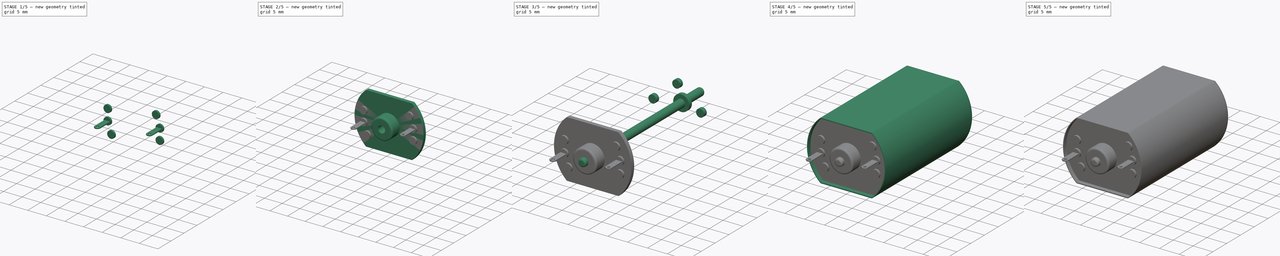
[diagram: build sequence overview — one tinted view per stage of 5, left to right]
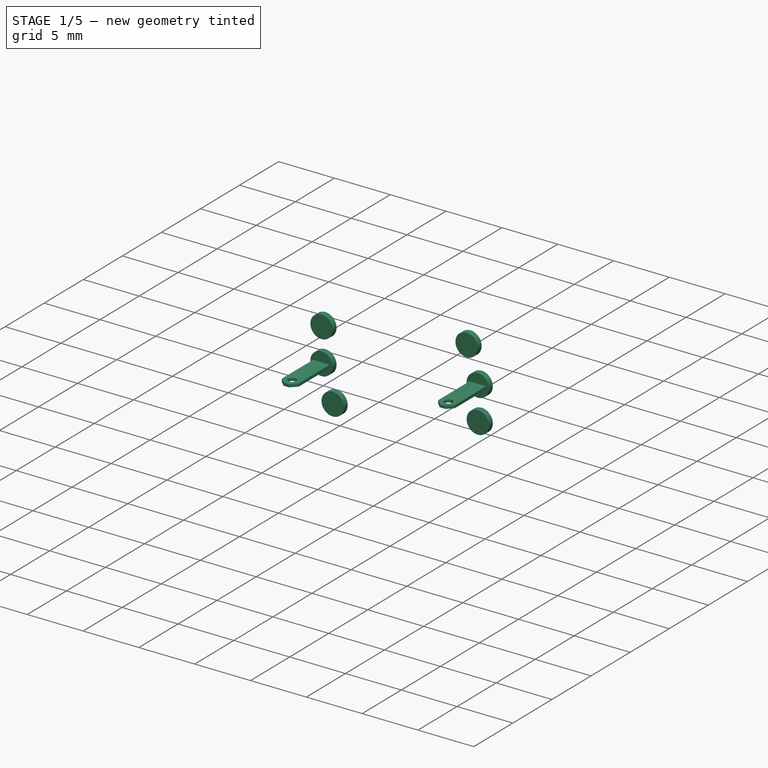
[diagram: stage 1 of 5 — iso view after this stage's code; geometry added in this stage tinted green]
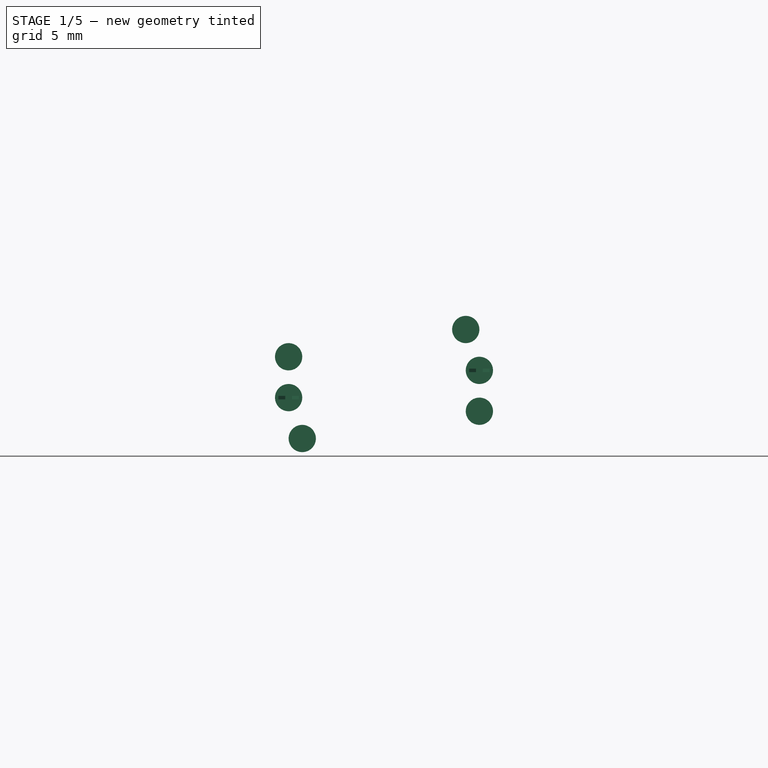
[diagram: stage 1 of 5 — front view after this stage's code; geometry added in this stage tinted green]
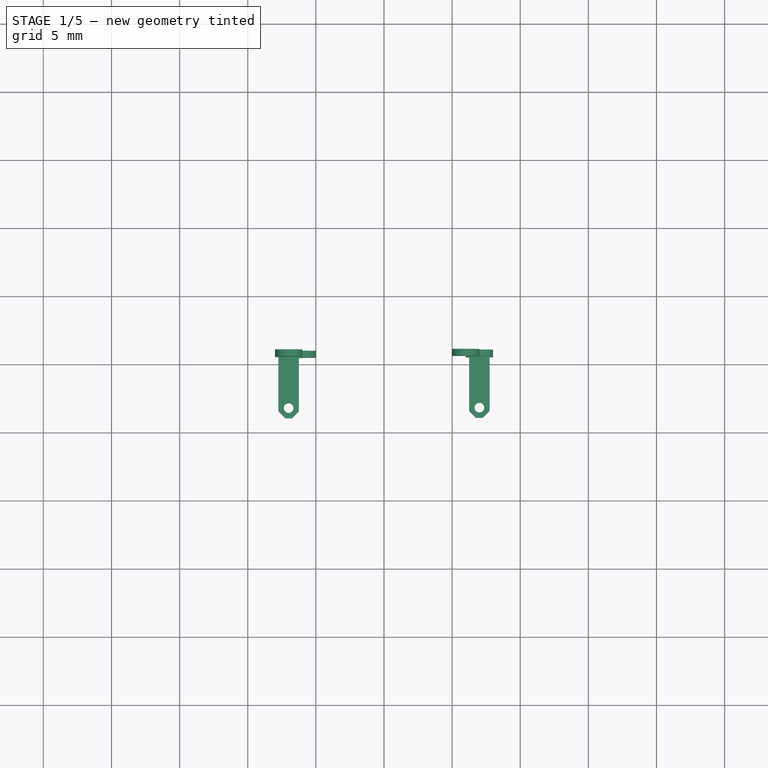
[diagram: stage 1 of 5 — top view after this stage's code; geometry added in this stage tinted green]
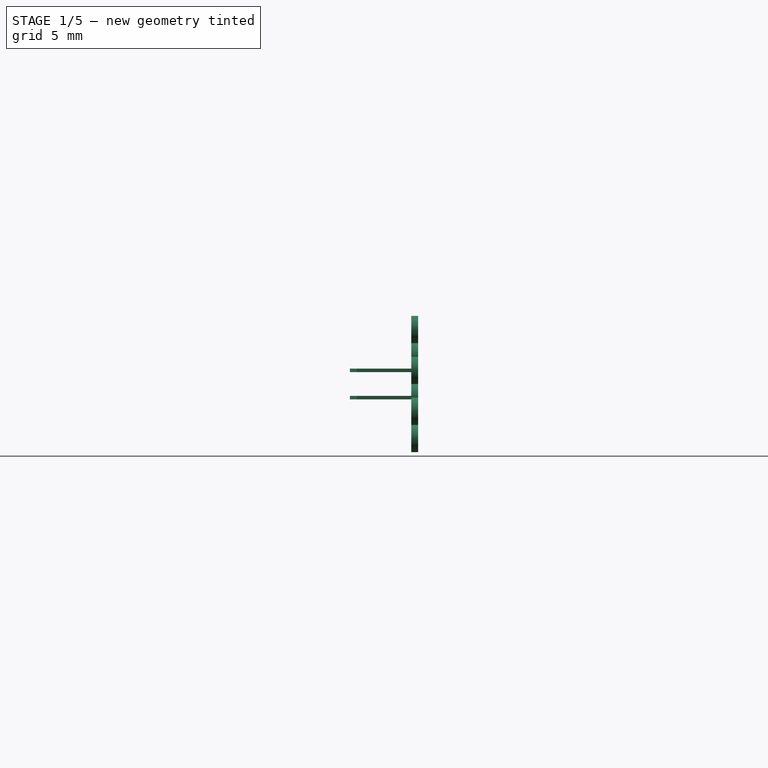
[diagram: stage 1 of 5 — right view after this stage's code; geometry added in this stage tinted green]
FCSTD DOCUMENT  (FreeCAD 0.14R3702 (Git))
Label: scaleauto-sc0026
License: CC-BY 3.0
LicenseURL: http://creativecommons.org/licenses/by/3.0/
objects: Part::Extrusion×16, Sketcher::SketchObject×15, Part::Cut×8, Part::Fillet×4, Part::Compound×3, Part::MultiFuse×2, Part::Chamfer×1
note: 49 computed .brp shape members not serialized (recipe doc carries the construction recipe); baked Part::Feature solids carry a one-line shape summary decoded from their .brp

FEATURE [Sketcher::SketchObject] Sketch014
  Placement = pos=(0,0,0) rot=(-1,0,0;4.71239rad)
  sketch-geometry (3):
    g0: Circle CenterX=7 CenterY=1 CenterZ=0 NormalX=0 NormalY=0 NormalZ=1 Radius=1
    g1: Circle CenterX=6 CenterY=4 CenterZ=0 NormalX=0 NormalY=0 NormalZ=1 Radius=1
    g2: Circle CenterX=7 CenterY=-2 CenterZ=0 NormalX=0 NormalY=0 NormalZ=1 Radius=1
FEATURE [Part::Extrusion] Extrude013
  Base = -> Sketch014
  Dir = (0,0.5,0)
  Placement = pos=(0,0.5,0) rot=(0,0,1;0rad)
  Solid = true
FEATURE [Sketcher::SketchObject] Sketch015
  Placement = pos=(0.25,0,1) rot=(0,0,1;0rad)
  sketch-geometry (6):
    g0: LineSegment StartX=7.5 StartY=0.5 StartZ=0 EndX=7.5 EndY=-3.5 EndZ=0
    g1: LineSegment StartX=7.5 StartY=-3.5 StartZ=0 EndX=7 EndY=-4 EndZ=0
    g2: LineSegment StartX=7 StartY=-4 StartZ=0 EndX=6.5 EndY=-4 EndZ=0
    g3: LineSegment StartX=6.5 StartY=-4 StartZ=0 EndX=6 EndY=-3.5 EndZ=0
    g4: LineSegment StartX=6 StartY=-3.5 StartZ=0 EndX=6 EndY=0.5 EndZ=0
    g5: LineSegment StartX=6 StartY=0.5 StartZ=0 EndX=7.5 EndY=0.5 EndZ=0
  constraints (9):
    c: Vertical(g0)
    c: Coincident(g1,g0)
    c: Horizontal(g2)
    c: Coincident(g3,g2)
    c: Coincident(g4,g3)
    c: Vertical(g4)
    c: Coincident(g5,g4)
    c: Coincident(g5,g0)
    c: Horizontal(g5)
FEATURE [Part::Extrusion] Extrude014
  Base = -> Sketch015
  Dir = (0,0,0.25)
  Placement = pos=(0,0,-0.125) rot=(0,0,1;0rad)
  Solid = true
FEATURE [Sketcher::SketchObject] Sketch016
  sketch-geometry (1):
    g0: Circle CenterX=7 CenterY=-3.25 CenterZ=0 NormalX=0 NormalY=0 NormalZ=1 Radius=0.353553
FEATURE [Part::Extrusion] Extrude015
  Base = -> Sketch016
  Dir = (0,0,2)
  Solid = true
FEATURE [Part::Cut] Cut006
  Base = -> Extrude014
  Tool = -> Extrude015
FEATURE [Part::Cut] Cut007
  Base = -> Extrude014
  Tool = -> Extrude015
FEATURE [Part::Extrusion] Extrude016
  Base = -> Sketch014
  Dir = (0,0.5,0)
  Placement = pos=(0,0.5,0) rot=(0,0,1;0rad)
  Solid = true
FEATURE [Part::Compound] Compound001
  Links = -> [Extrude016,Cut007]
  Placement = pos=(0,0,0) rot=(0,1,0;3.14159rad)
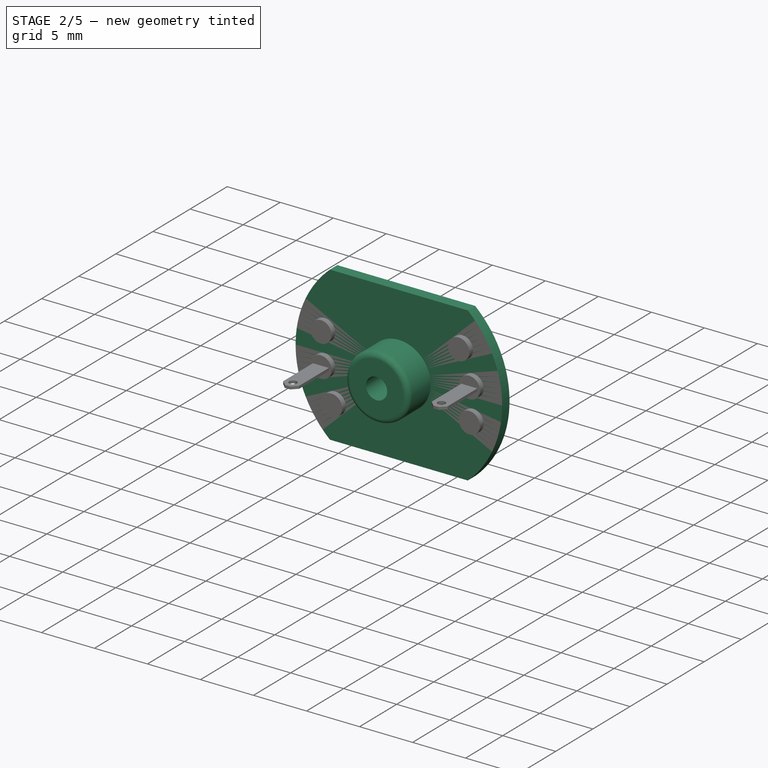
[diagram: stage 2 of 5 — iso view after this stage's code; geometry added in this stage tinted green]
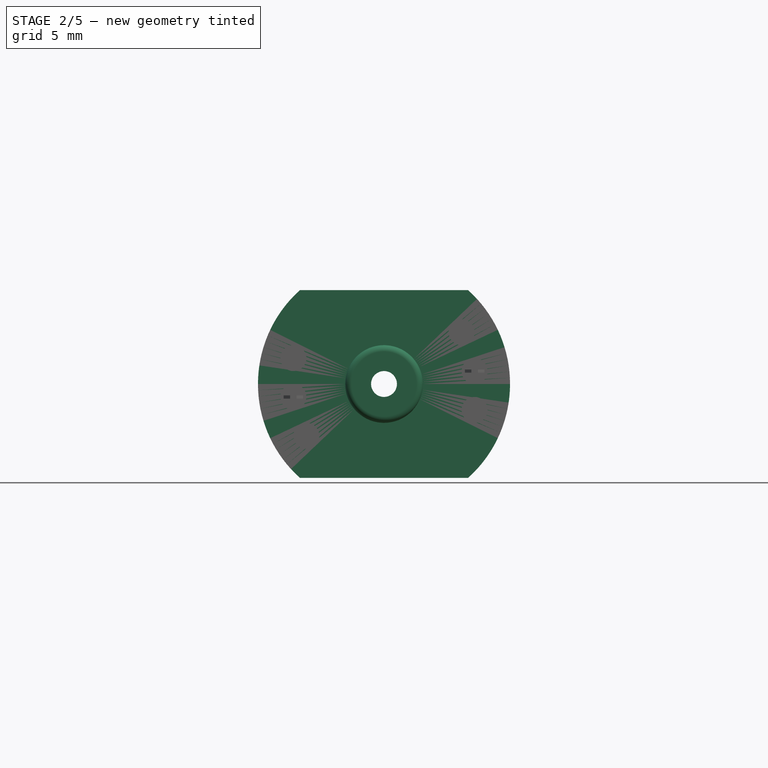
[diagram: stage 2 of 5 — front view after this stage's code; geometry added in this stage tinted green]
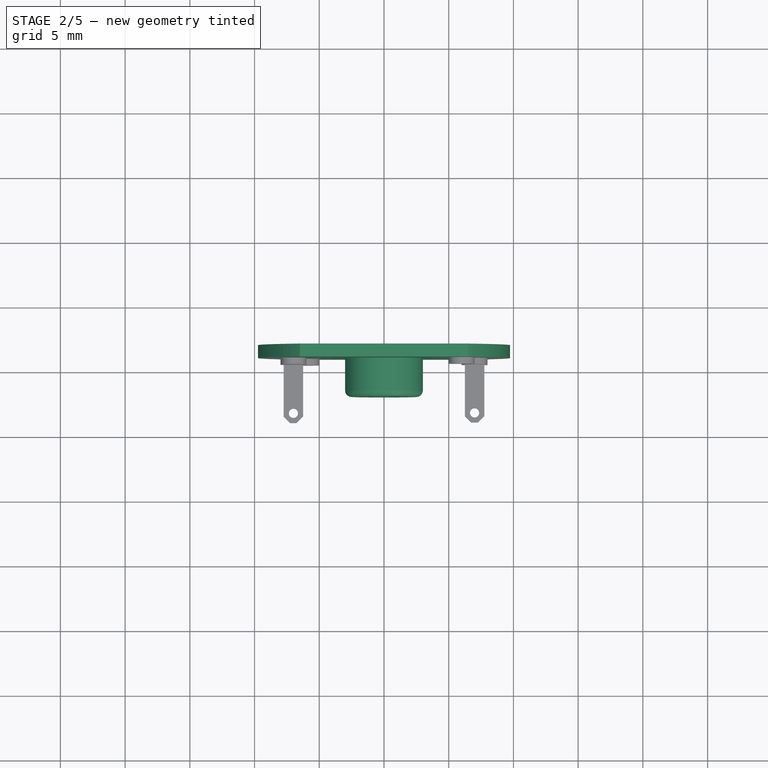
[diagram: stage 2 of 5 — top view after this stage's code; geometry added in this stage tinted green]
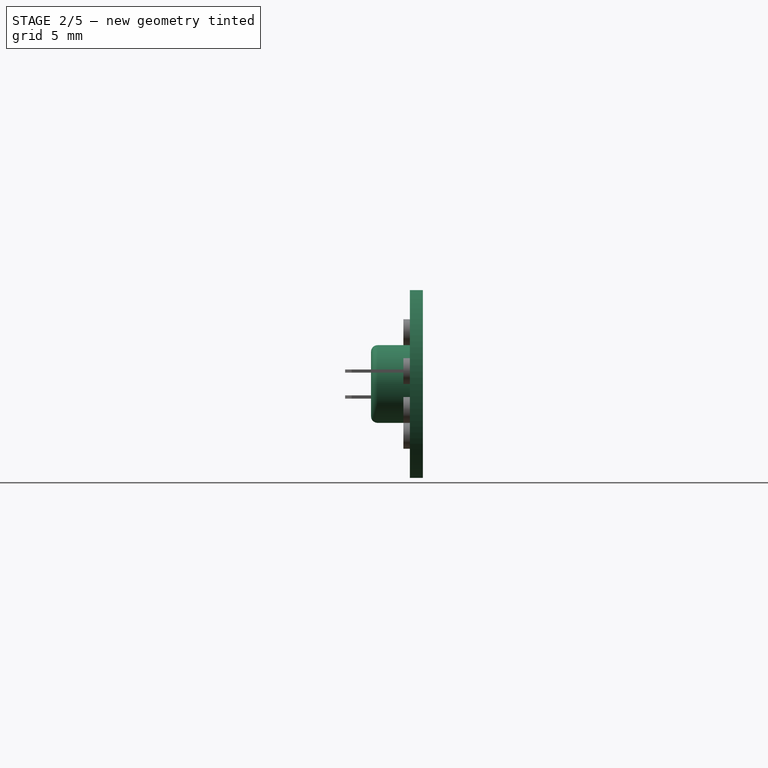
[diagram: stage 2 of 5 — right view after this stage's code; geometry added in this stage tinted green]
FEATURE [Part::Extrusion] Extrude002
  Base = -> Sketch001
  Dir = (0,1,0)
  Placement = pos=(0,1,0) rot=(0,0,1;0rad)
  Solid = true
FEATURE [Sketcher::SketchObject] Sketch012
  Placement = pos=(0,-2.5,0) rot=(-1,0,0;4.71239rad)
  sketch-geometry (1):
    g0: Circle CenterX=0 CenterY=0 CenterZ=0 NormalX=0 NormalY=0 NormalZ=1 Radius=3
FEATURE [Sketcher::SketchObject] Sketch013
  Placement = pos=(0,-3,0) rot=(-1,0,0;4.71239rad)
  sketch-geometry (1):
    g0: Circle CenterX=0 CenterY=0 CenterZ=0 NormalX=0 NormalY=0 NormalZ=1 Radius=1
  constraints (1):
    c: Coincident(g0,g-1)
FEATURE [Part::Extrusion] Extrude011
  Base = -> Sketch013
  Dir = (0,5,0)
  Solid = true
FEATURE [Part::Extrusion] Extrude012
  Base = -> Sketch012
  Dir = (0,3,0)
  Placement = pos=(0,0.5,0) rot=(0,0,1;0rad)
  Solid = true
FEATURE [Part::Fillet] Fillet003
  Base = -> Extrude012
  Edges = 1 edges r=0.5: [Edge2]
FEATURE [Part::MultiFuse] Fusion001
  Shapes = -> [Extrude002,Fillet003]
FEATURE [Part::Cut] Cut005
  Base = -> Fusion001
  Tool = -> Extrude011
FEATURE [Part::Compound] Compound
  Links = -> [Extrude013,Cut006]
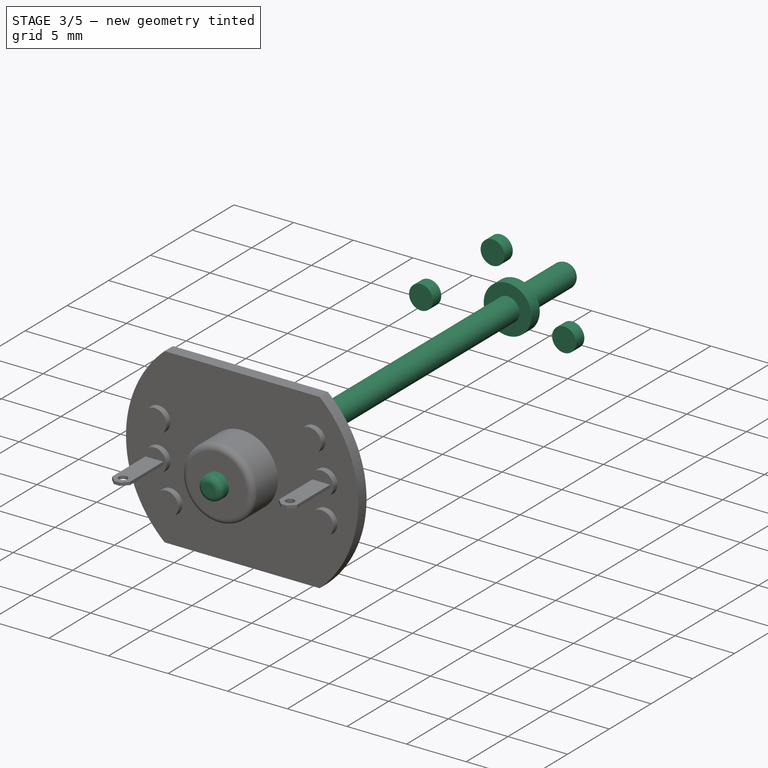
[diagram: stage 3 of 5 — iso view after this stage's code; geometry added in this stage tinted green]
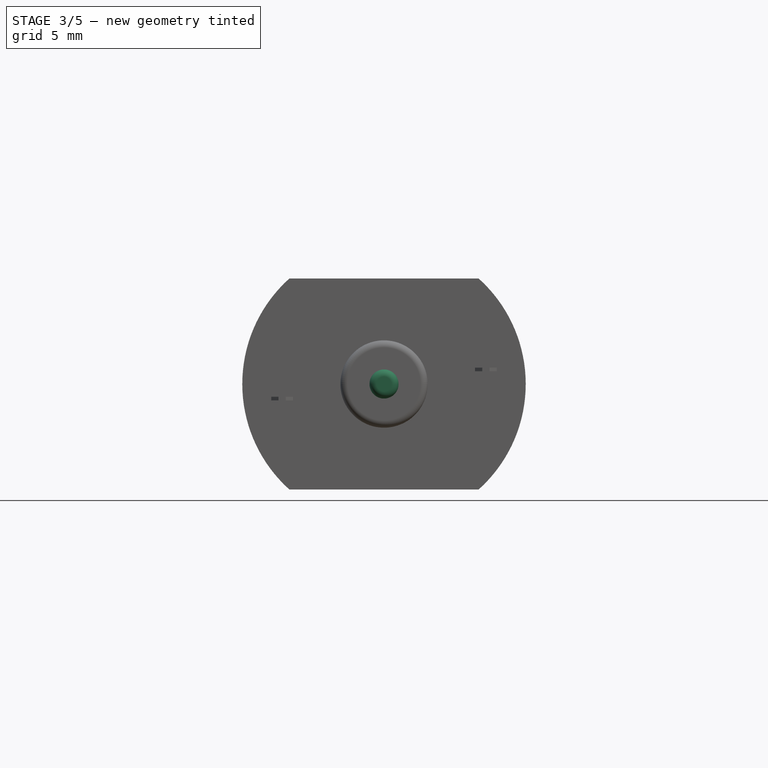
[diagram: stage 3 of 5 — front view after this stage's code; geometry added in this stage tinted green]
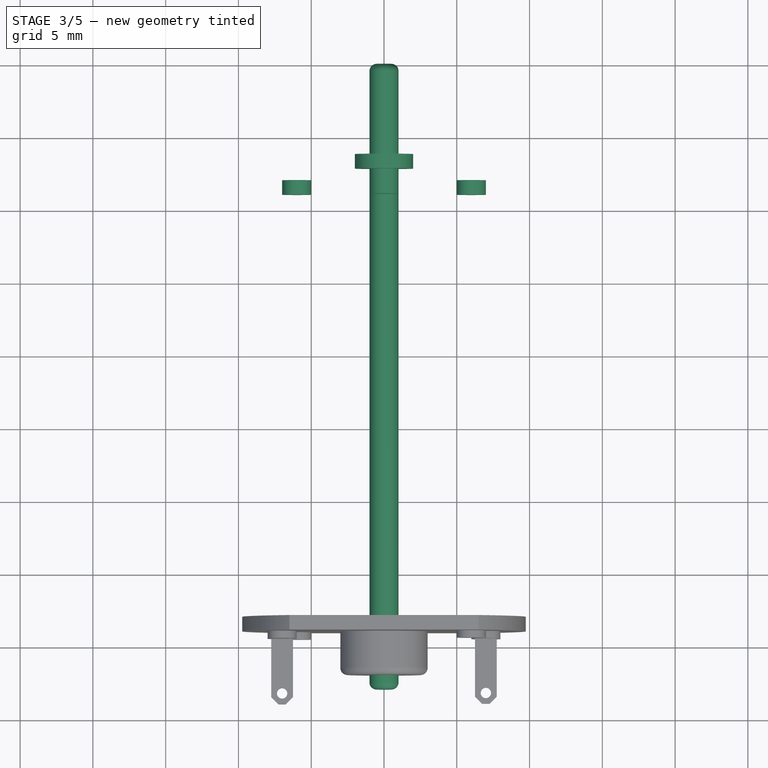
[diagram: stage 3 of 5 — top view after this stage's code; geometry added in this stage tinted green]
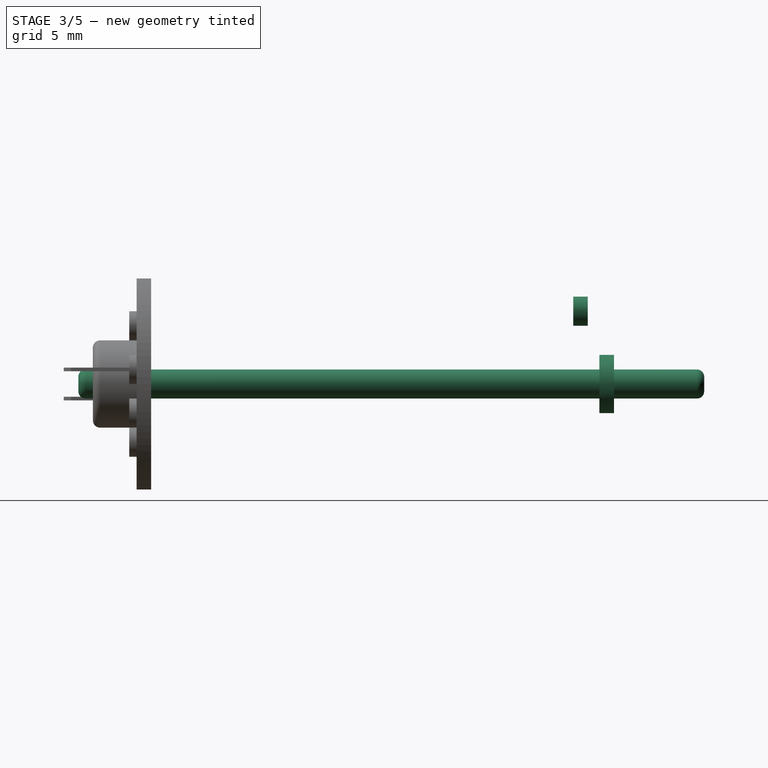
[diagram: stage 3 of 5 — right view after this stage's code; geometry added in this stage tinted green]
FEATURE [Sketcher::SketchObject] Sketch007
  Placement = pos=(1.5,31,0) rot=(-1,0,0;4.71239rad)
  sketch-geometry (3):
    g0: Circle CenterX=4.5 CenterY=0 CenterZ=0 NormalX=0 NormalY=0 NormalZ=1 Radius=1
    g1: Circle CenterX=-7.5 CenterY=0 CenterZ=0 NormalX=0 NormalY=0 NormalZ=1 Radius=1
    g2: Circle CenterX=-1.5 CenterY=5 CenterZ=0 NormalX=0 NormalY=0 NormalZ=1 Radius=1
FEATURE [Part::Extrusion] Extrude006
  Base = -> Sketch007
  Dir = (0,1,0)
  Solid = true
FEATURE [Part::Extrusion] Extrude007
  Base = -> Sketch006
  Dir = (0,1,0)
  Placement = pos=(0,-1.2,0) rot=(0,0,1;0rad)
  Solid = true
FEATURE [Sketcher::SketchObject] Sketch009
  Placement = pos=(0,-3,0) rot=(1,0,0;1.5708rad)
  sketch-geometry (1):
    g0: Circle CenterX=0 CenterY=0 CenterZ=0 NormalX=0 NormalY=0 NormalZ=1 Radius=1
  constraints (1):
    c: PointOnObject(g0,g-2)
FEATURE [Part::Extrusion] Extrude008
  Base = -> Sketch009
  Dir = (0,43,0)
  Solid = true
FEATURE [Sketcher::SketchObject] Sketch010
  Placement = pos=(0,0,0) rot=(1,0,0;1.5708rad)
  sketch-geometry (1):
    g0: Circle CenterX=0 CenterY=0 CenterZ=0 NormalX=0 NormalY=0 NormalZ=1 Radius=1
  constraints (1):
    c: PointOnObject(g0,g-2)
FEATURE [Part::Extrusion] Extrude009
  Base = -> Sketch010
  Dir = (0,10,0)
  Placement = pos=(0,30,0) rot=(0,0,1;0rad)
  Solid = true
FEATURE [Part::Cut] Cut004
  Base = -> Extrude007
  Tool = -> Extrude009
FEATURE [Part::Fillet] Fillet002
  Base = -> Extrude008
  Edges = 2 edges r=0.5: [Edge2,Edge3]
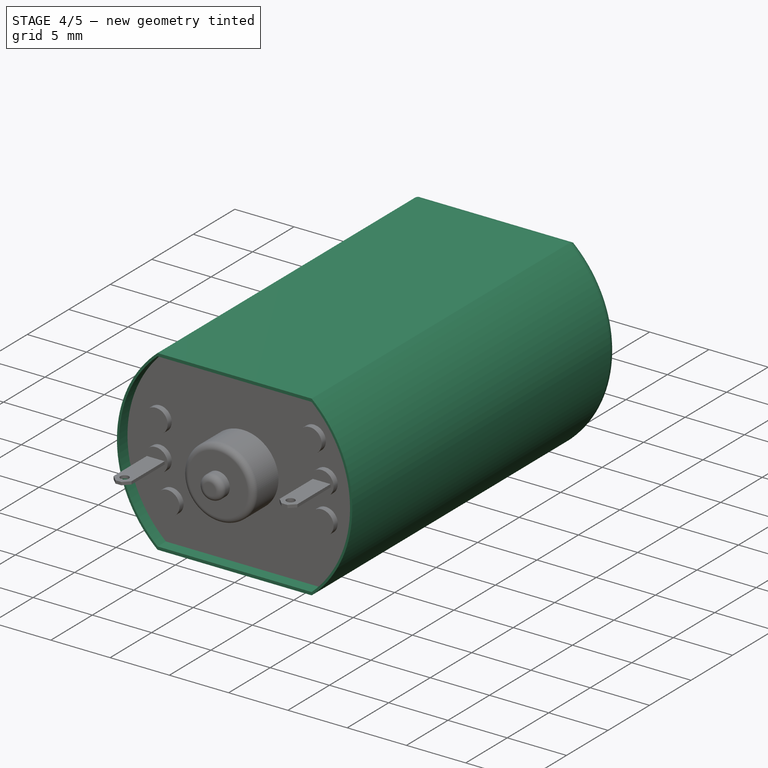
[diagram: stage 4 of 5 — iso view after this stage's code; geometry added in this stage tinted green]
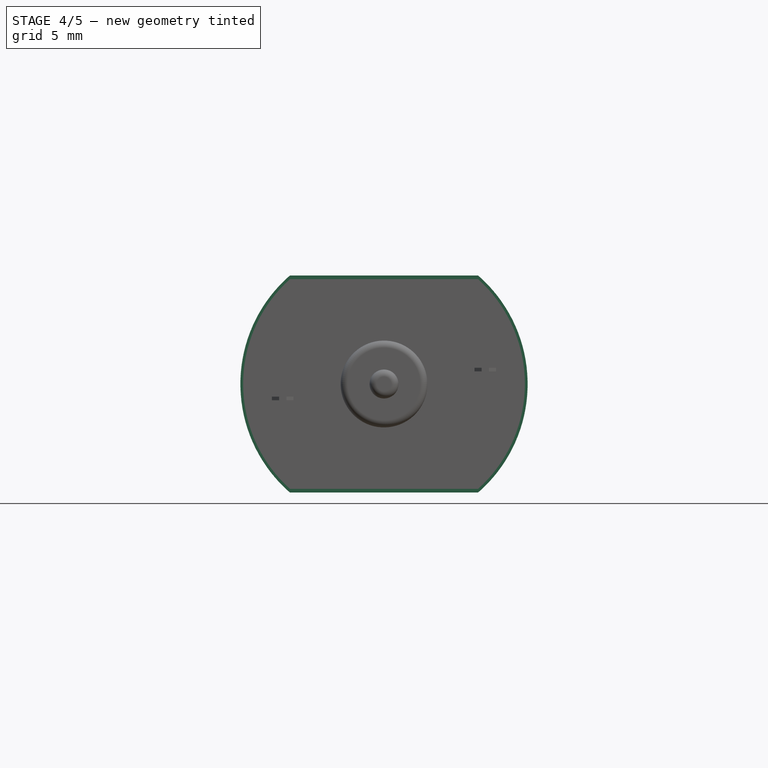
[diagram: stage 4 of 5 — front view after this stage's code; geometry added in this stage tinted green]
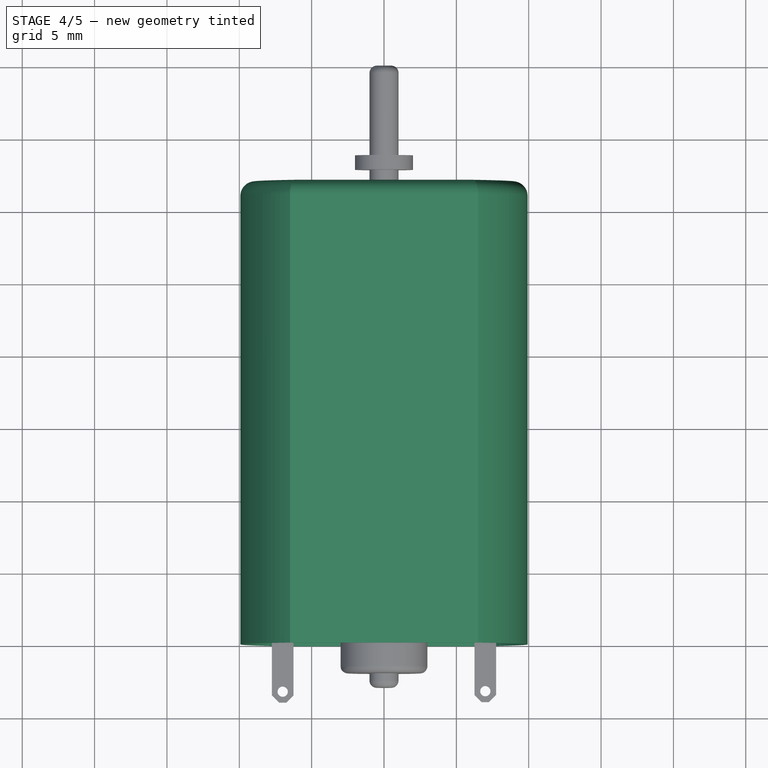
[diagram: stage 4 of 5 — top view after this stage's code; geometry added in this stage tinted green]
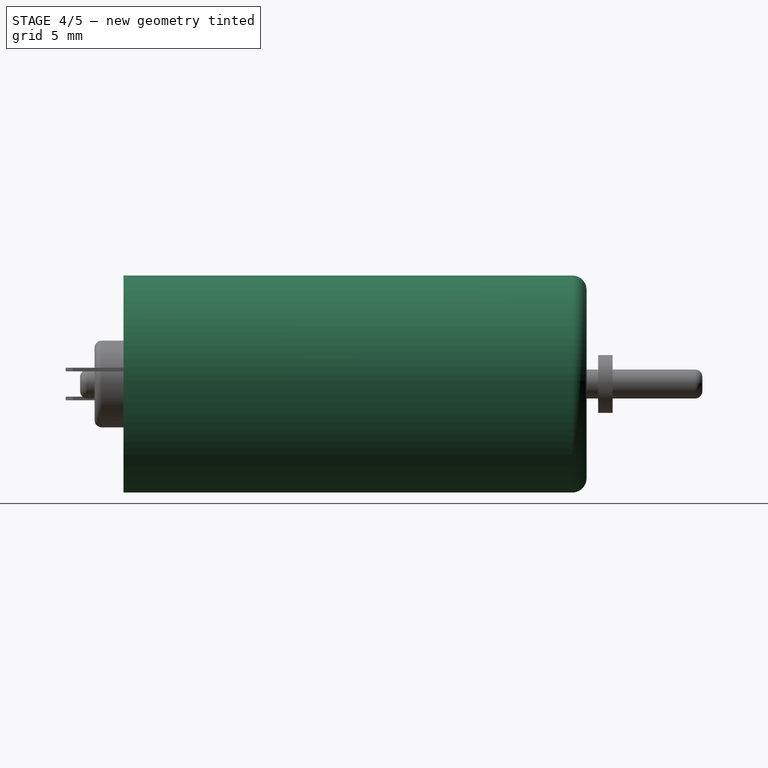
[diagram: stage 4 of 5 — right view after this stage's code; geometry added in this stage tinted green]
FEATURE [Sketcher::SketchObject] Sketch
  Placement = pos=(0,0,0) rot=(-1,0,0;4.71239rad)
  sketch-geometry (4):
    g0: LineSegment StartX=-6.5 StartY=7.5 StartZ=0 EndX=6.5 EndY=7.5 EndZ=0
    g1: LineSegment StartX=-6.5 StartY=-7.5 StartZ=0 EndX=6.5 EndY=-7.5 EndZ=0
    g2: ArcOfCircle CenterX=0 CenterY=0 CenterZ=0 NormalX=0 NormalY=0 NormalZ=1 Radius=9.92471 StartAngle=5.42648 EndAngle=7.13989
    g3: ArcOfCircle CenterX=0 CenterY=0 CenterZ=0 NormalX=0 NormalY=0 NormalZ=1 Radius=9.92472 StartAngle=2.28489 EndAngle=3.9983
  constraints (8):
    c: Horizontal(g0)
    c: Horizontal(g1)
    c: Coincident(g2,g-1)
    c: Coincident(g2,g0)
    c: Coincident(g2,g1)
    c: Coincident(g3,g-1)
    c: Coincident(g3,g0)
    c: Coincident(g3,g1)
FEATURE [Part::Extrusion] Extrude
  Base = -> Sketch
  Dir = (0,32,0)
  Solid = true
FEATURE [Part::Fillet] Fillet
  Base = -> Extrude
  Edges = 4 edges r=1: [Edge4,Edge7,Edge10,Edge12]
FEATURE [Sketcher::SketchObject] Sketch001
  Placement = pos=(0,0,0) rot=(-1,0,0;4.71239rad)
  sketch-geometry (4):
    g0: LineSegment StartX=-6.5 StartY=7.25 StartZ=0 EndX=6.5 EndY=7.25 EndZ=0
    g1: ArcOfCircle CenterX=0 CenterY=0 CenterZ=0 NormalX=0 NormalY=0 NormalZ=1 Radius=9.73717 StartAngle=5.4433 EndAngle=7.12308
    g2: ArcOfCircle CenterX=0 CenterY=0 CenterZ=0 NormalX=0 NormalY=0 NormalZ=1 Radius=9.73717 StartAngle=2.3017 EndAngle=3.98148
    g3: LineSegment StartX=-6.5 StartY=-7.25 StartZ=0 EndX=6.5 EndY=-7.25 EndZ=0
  constraints (8):
    c: Horizontal(g0)
    c: Coincident(g1,g-1)
    c: Coincident(g1,g0)
    c: Coincident(g2,g-1)
    c: Coincident(g2,g0)
    c: Coincident(g3,g2)
    c: Coincident(g3,g1)
    c: Horizontal(g3)
FEATURE [Sketcher::SketchObject] Sketch002
  Placement = pos=(0,0,0) rot=(1,0,0;1.5708rad)
  sketch-geometry (4):
    g0: LineSegment StartX=-6.5 StartY=7.25 StartZ=0 EndX=6.5 EndY=7.25 EndZ=0
    g1: ArcOfCircle CenterX=0 CenterY=0 CenterZ=0 NormalX=0 NormalY=0 NormalZ=1 Radius=9.73717 StartAngle=5.4433 EndAngle=7.12308
    g2: ArcOfCircle CenterX=0 CenterY=0 CenterZ=0 NormalX=0 NormalY=0 NormalZ=1 Radius=9.73717 StartAngle=2.3017 EndAngle=3.98148
    g3: LineSegment StartX=-6.5 StartY=-7.25 StartZ=0 EndX=6.5 EndY=-7.25 EndZ=0
  constraints (8):
    c: Horizontal(g0)
    c: Coincident(g1,g-1)
    c: Coincident(g1,g0)
    c: Coincident(g2,g-1)
    c: Coincident(g2,g0)
    c: Coincident(g3,g2)
    c: Coincident(g3,g1)
    c: Horizontal(g3)
FEATURE [Part::Extrusion] Extrude001
  Base = -> Sketch002
  Dir = (0,31,0)
  Solid = true
FEATURE [Part::Chamfer] Chamfer
  Base = -> Extrude001
  Edges = 4 edges r=1: [Edge4,Edge7,Edge10,Edge12]
FEATURE [Part::Cut] Cut
  Base = -> Fillet
  Tool = -> Chamfer
FEATURE [Sketcher::SketchObject] Sketch006
  Placement = pos=(0,34,0) rot=(1,0,0;1.5708rad)
  sketch-geometry (1):
    g0: Circle CenterX=0 CenterY=0 CenterZ=0 NormalX=0 NormalY=0 NormalZ=1 Radius=2
  constraints (1):
    c: Coincident(g0,g-1)
FEATURE [Part::Extrusion] Extrude005
  Base = -> Sketch005
  Dir = (0,1,0)
  Solid = true
FEATURE [Part::Cut] Cut002
  Base = -> Cut
  Tool = -> Extrude005
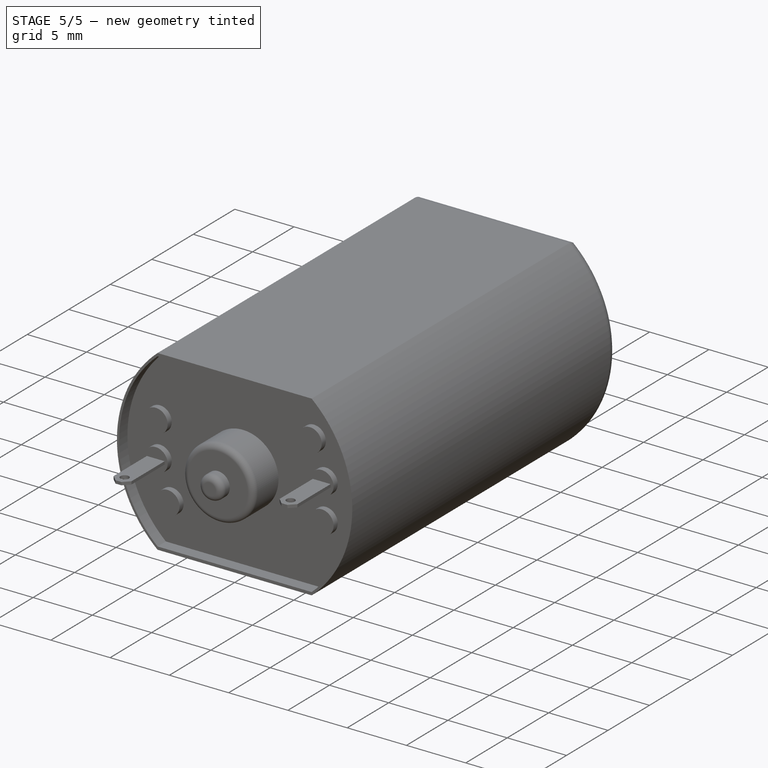
[diagram: stage 5 of 5 — iso view after this stage's code; geometry added in this stage tinted green]
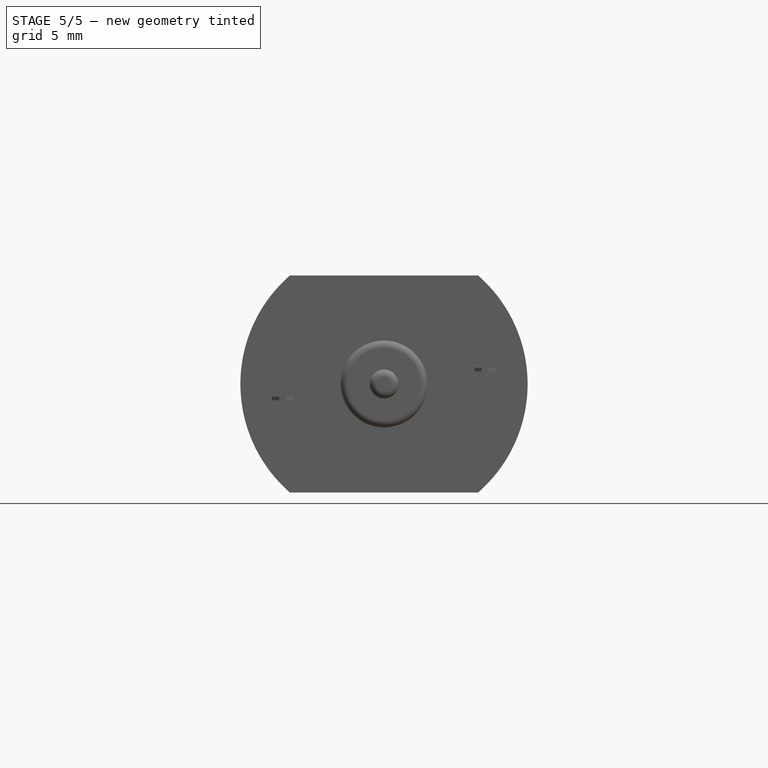
[diagram: stage 5 of 5 — front view after this stage's code; geometry added in this stage tinted green]
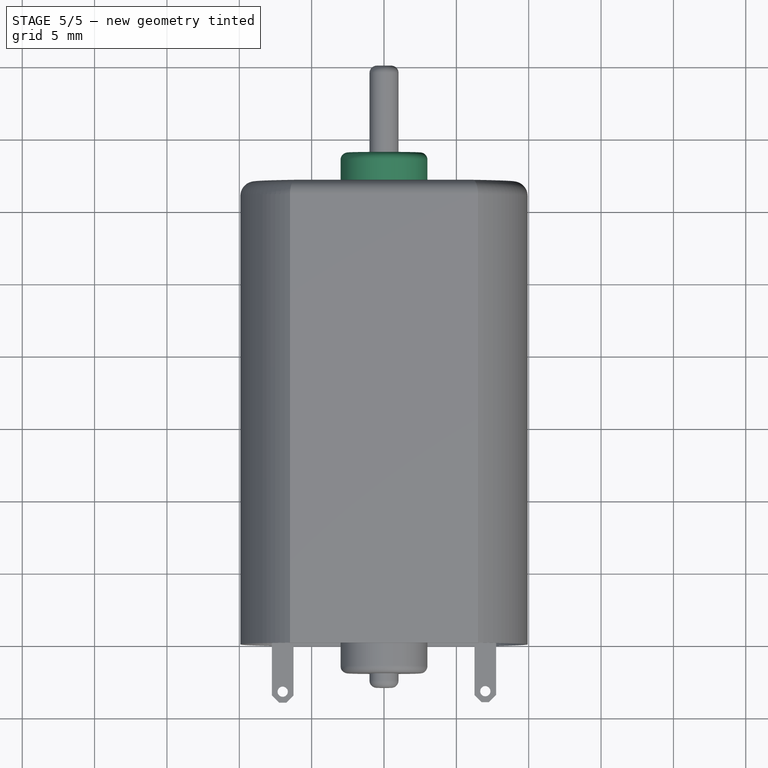
[diagram: stage 5 of 5 — top view after this stage's code; geometry added in this stage tinted green]
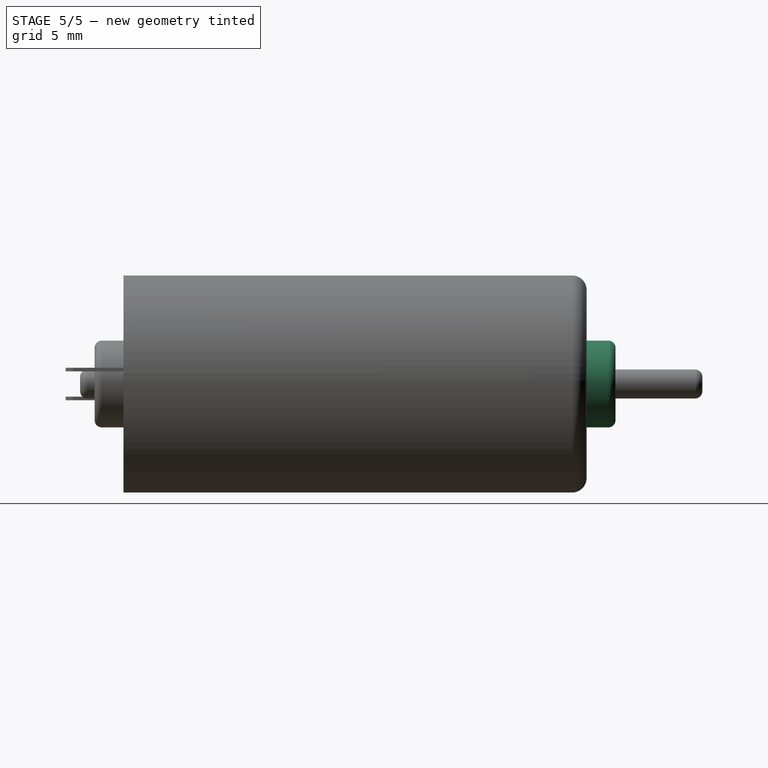
[diagram: stage 5 of 5 — right view after this stage's code; geometry added in this stage tinted green]
FEATURE [Sketcher::SketchObject] Sketch003
  Placement = pos=(0,32,0) rot=(-1,0,0;4.71239rad)
  sketch-geometry (1):
    g0: Circle CenterX=0 CenterY=0 CenterZ=0 NormalX=0 NormalY=0 NormalZ=1 Radius=3
  constraints (1):
    c: Coincident(g0,g-1)
FEATURE [Part::Extrusion] Extrude003
  Base = -> Sketch003
  Dir = (0,2,0)
  Solid = true
FEATURE [Part::Fillet] Fillet001
  Base = -> Extrude003
  Edges = 1 edges r=0.5: [Edge3]
FEATURE [Sketcher::SketchObject] Sketch004
  Placement = pos=(0,34,0) rot=(-1,0,0;4.71239rad)
  sketch-geometry (1):
    g0: Circle CenterX=0 CenterY=0 CenterZ=0 NormalX=0 NormalY=0 NormalZ=1 Radius=2
  constraints (1):
    c: Coincident(g0,g-1)
FEATURE [Sketcher::SketchObject] Sketch005
  Placement = pos=(0,31,0) rot=(1,0,0;1.5708rad)
  sketch-geometry (1):
    g0: Circle CenterX=0 CenterY=0 CenterZ=0 NormalX=0 NormalY=0 NormalZ=1 Radius=2
  constraints (1):
    c: Coincident(g0,g-1)
FEATURE [Part::Extrusion] Extrude004
  Base = -> Sketch004
  Dir = (0,2,0)
  Placement = pos=(0,-2,0) rot=(0,0,1;0rad)
  Solid = true
FEATURE [Part::Cut] Cut001
  Base = -> Fillet001
  Tool = -> Extrude004
FEATURE [Part::Cut] Cut003
  Base = -> Cut002
  Tool = -> Extrude006
FEATURE [Part::MultiFuse] Fusion
  Shapes = -> [Cut001,Cut003]
FEATURE [Part::Compound] Compound002  label="SC0026"
  Links = -> [Fusion,Cut004,Fillet002,Cut005,Compound,Compound001]
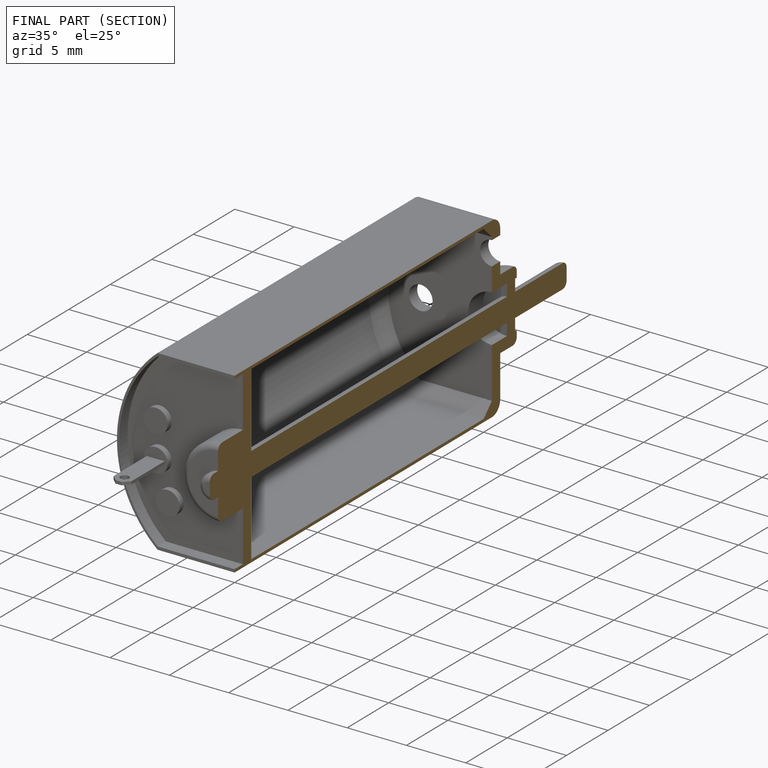
[diagram: finished part — half-section view (interior)]
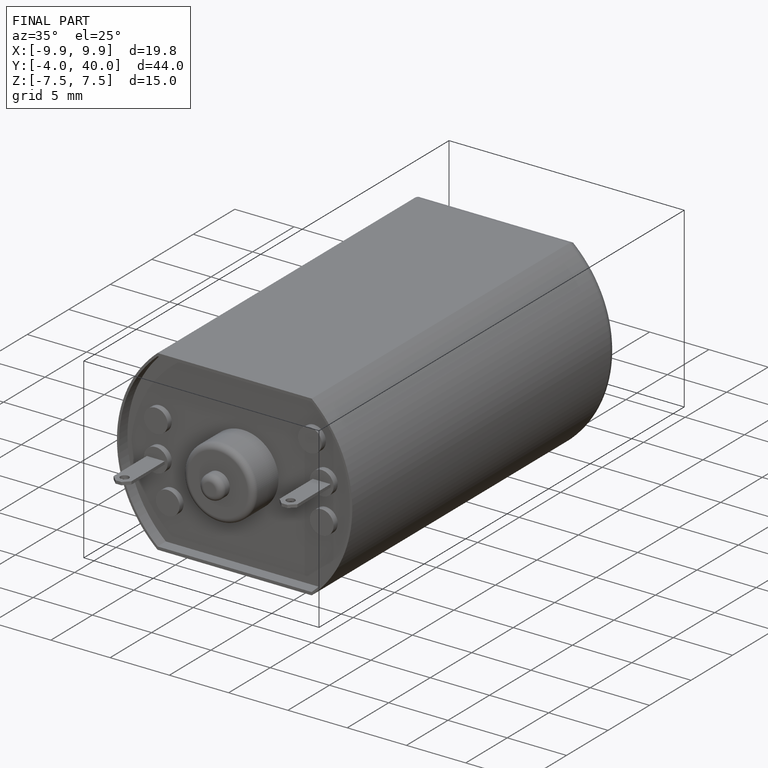
[diagram: finished part — iso view with bounding-box wireframe]
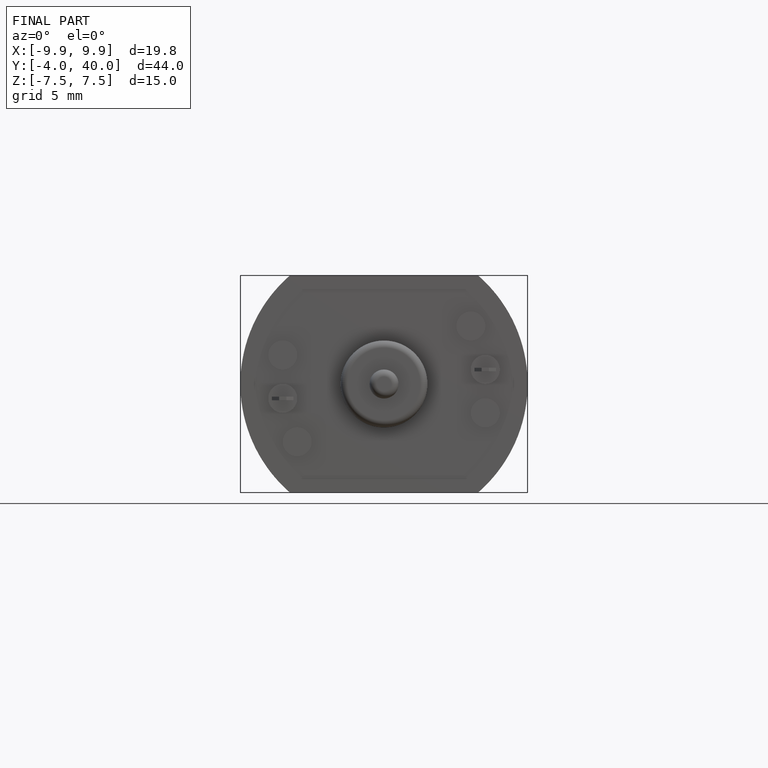
[diagram: finished part — front view with bounding-box wireframe]
